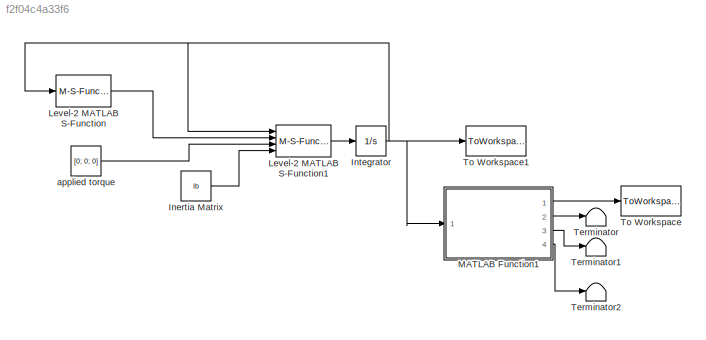
MODEL slx_f2f04c4a33f6
KIND model
CONFIG AbsTol = auto
CONFIG EnableMultiTasking = off
CONFIG FixedStep = auto
CONFIG MaxStep = auto
CONFIG MinStep = auto
CONFIG RelTol = 1e-6
CONFIG SampleTimeConstraint = Unconstrained
CONFIG Solver = ode15s
CONFIG SolverName = ode15s
CONFIG StartTime = 0.0
CONFIG StopTime = t_end
BLOCK [Constant] Inertia Matrix 
  Value = Ib
BLOCK [Integrator] Integrator
  InitialCondition = x_i
  Ports = [1, 1]
BLOCK [M-S-Function] Level-2 MATLAB S-Function
  FunctionName = inv_grav
  Ports = [1, 1]
BLOCK [M-S-Function] Level-2 MATLAB S-Function1
  FunctionName = state_space
  Ports = [4, 1]
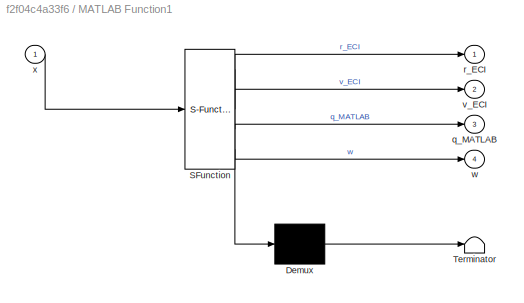
BLOCK [SubSystem] MATLAB Function1
  ErrorFcn = Stateflow.Translate.translate
  PermitHierarchicalResolution = ExplicitOnly
  Ports = [1, 4]
  RequestExecContextInheritance = off
  SFBlockType = MATLAB Function
  TreatAsAtomicUnit = on
  Variant = off
BLOCK [Demux] MATLAB Function1/ Demux 
  Outputs = 1
  Ports = [1, 1]
BLOCK [S-Function] MATLAB Function1/ SFunction 
  EnableBusSupport = on
  FunctionName = sf_sfun
  PortCounts = [1 5]
  Ports = [1, 5]
  SFcnIsStateOwnerBlock = off
  SFunctionDeploymentMode = off
  Tag = Stateflow S-Function BOP 1
BLOCK [Terminator] MATLAB Function1/ Terminator 
BLOCK [Outport] MATLAB Function1/q_MATLAB
  IconDisplay = Port number
  Port = 3
BLOCK [Outport] MATLAB Function1/r_ECI
  IconDisplay = Port number
BLOCK [Outport] MATLAB Function1/v_ECI
  IconDisplay = Port number
  Port = 2
BLOCK [Outport] MATLAB Function1/w
  IconDisplay = Port number
  Port = 4
BLOCK [Inport] MATLAB Function1/x
  IconDisplay = Port number
BLOCK [Terminator] Terminator
BLOCK [Terminator] Terminator1
BLOCK [Terminator] Terminator2
BLOCK [ToWorkspace] To Workspace
  FixptAsFi = on
  MaxDataPoints = inf
  Ports = [1]
  SampleTime = -1
  Save2DSignal = 3-D array (concatenate along third dimension)
  VariableName = r_ECI
BLOCK [ToWorkspace] To Workspace1
  FixptAsFi = on
  MaxDataPoints = inf
  Ports = [1]
  SampleTime = -1
  Save2DSignal = 2-D array (concatenate along first dimension)
  VariableName = x
BLOCK [Constant] applied torque 
  Value = [0; 0; 0]
LINE Inertia Matrix :1 -> Level-2 MATLAB S-Function1:4
NET Integrator:1 -> Level-2 MATLAB S-Function1:1, Level-2 MATLAB S-Function:1, MATLAB Function1:1, To Workspace1:1
LINE Level-2 MATLAB S-Function1:1 -> Integrator:1
LINE Level-2 MATLAB S-Function:1 -> Level-2 MATLAB S-Function1:2
LINE MATLAB Function1:1 -> To Workspace:1
LINE MATLAB Function1:2 -> Terminator:1
LINE MATLAB Function1:3 -> Terminator1:1
LINE MATLAB Function1:4 -> Terminator2:1
LINE applied torque :1 -> Level-2 MATLAB S-Function1:3
note: NET lines group one-source signal fan-out (src -> all destinations, sorted); 1:1 wires keep LINE
CHART MATLAB Function1 states=1 transitions=1
  STATE_LABEL 'eML_blk_kernel()'
  STATE_LABEL 'SCRIPT:\nfunction [r_ECI,v_ECI,q_MATLAB,w] = analysis_demux(x)\n\nr_ECI = zeros(3,1);\nr_ECI(1,1) = x(1,1);\nr_ECI(2,1) = x(2,1);\nr_ECI(3,1) = x(3,1);\n\nv_ECI = zeros(3,1);\nv_ECI(1,1) = x(4,1);\nv_ECI(2,1) = x(5,1);\nv_ECI(3,1) = x(6,1);\n\nq_MATLAB = zeros(4,1); %output quaternion in MATLAB notation, not Dogan notation.\nq_MATLAB(2,1) = x(7,1);\nq_MATLAB(3,1) = x(8,1);\nq_MATLAB(4,1) = x(9,1);\nq_MATLAB(1,1) =...<+85ch>'
